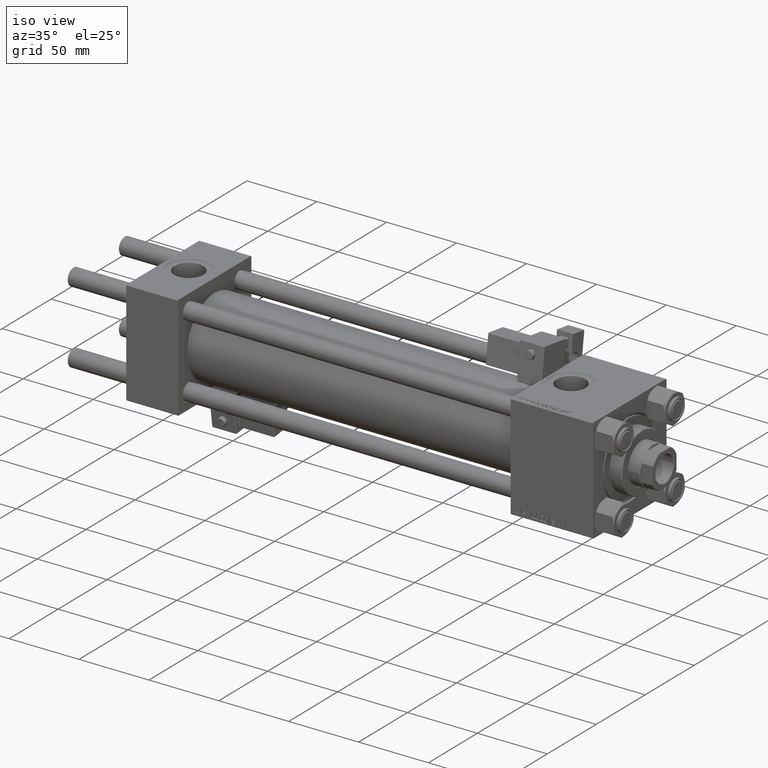
[diagram: clean part render]
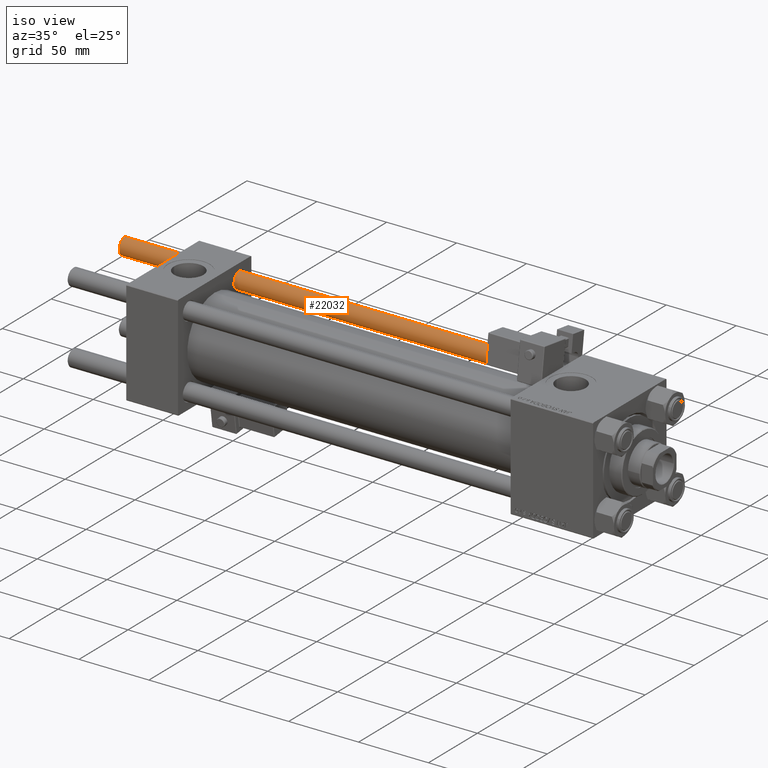
[diagram: same view with one face highlighted and labeled with its STEP entity id]
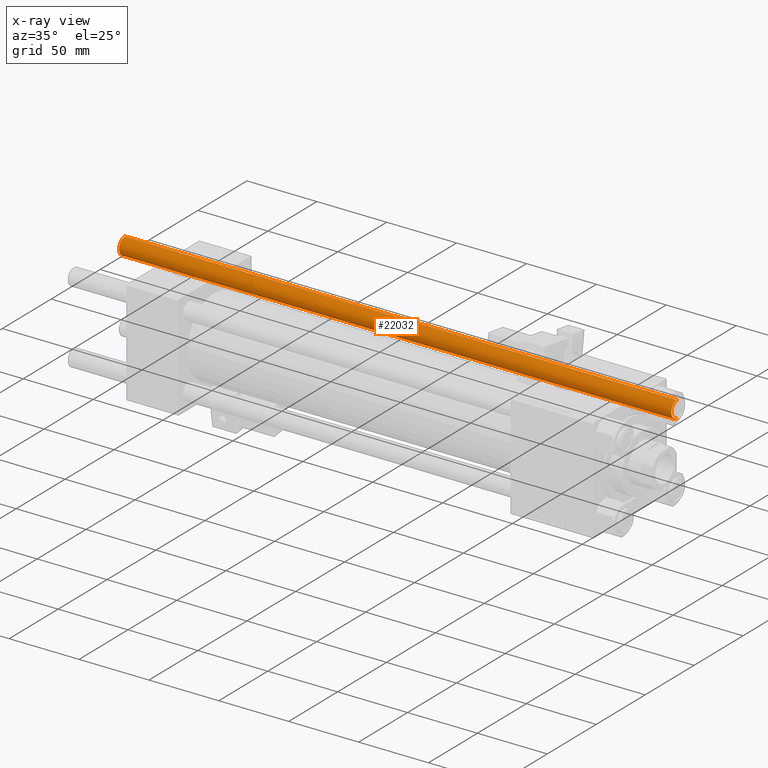
[diagram: x-ray of the same camera — body ghosted, the highlighted face saturated]
A machine part, iso view. The second image highlights one B-rep face of the part: STEP entity #22032.
The next image is the same camera in x-ray: the body ghosted, the highlighted face saturated — about 0% of this face is hidden behind the body in this view.
In plain terms, the highlighted cylindrical surface (edge-blend (fillet) strip) has radius 6 mm, axis along (-1, -0, -0).
Its self-contained STEP definition (entity closure, byte-faithful):
#638 = CARTESIAN_POINT ( 'NONE',  ( 0.000000000000000000, 0.000000000000000000, 395.5000000000000568 ) ) ;
#973 = DIRECTION ( 'NONE',  ( -0.000000000000000000, -0.000000000000000000, -1.000000000000000000 ) ) ;
#2766 = EDGE_CURVE ( 'NONE', #43515, #14283, #17342, .T. ) ;
#2948 = ORIENTED_EDGE ( 'NONE', *, *, #13555, .F. ) ;
#3246 = EDGE_CURVE ( 'NONE', #16394, #43515, #41729, .T. ) ;
#4991 = EDGE_LOOP ( 'NONE', ( #2948, #10081, #27153, #42263 ) ) ;
#6867 = AXIS2_PLACEMENT_3D ( 'NONE', #638, #34194, #16755 ) ;
#8742 = CARTESIAN_POINT ( 'NONE',  ( 6.000000000000000888, 7.347880794884120722E-16, 395.5000000000000568 ) ) ;
#10081 = ORIENTED_EDGE ( 'NONE', *, *, #3246, .T. ) ;
#11971 = VERTEX_POINT ( 'NONE', #44887 ) ;
#12206 = AXIS2_PLACEMENT_3D ( 'NONE', #27808, #48289, #31090 ) ;
#13555 = EDGE_CURVE ( 'NONE', #16394, #11971, #42905, .T. ) ;
#14283 = VERTEX_POINT ( 'NONE', #21629 ) ;
#15357 = CYLINDRICAL_SURFACE ( 'NONE', #31846, 6.000000000000000888 ) ;
#16394 = VERTEX_POINT ( 'NONE', #8742 ) ;
#16755 = DIRECTION ( 'NONE',  ( 1.000000000000000000, 0.000000000000000000, 0.000000000000000000 ) ) ;
#17342 = LINE ( 'NONE', #30148, #29485 ) ;
#18353 = CARTESIAN_POINT ( 'NONE',  ( 6.000000000000000888, 7.347880794884120722E-16, 396.0000000000000000 ) ) ;
#19181 = CARTESIAN_POINT ( 'NONE',  ( 0.000000000000000000, 0.000000000000000000, 396.0000000000000000 ) ) ;
#21629 = CARTESIAN_POINT ( 'NONE',  ( -6.000000000000000888, 0.000000000000000000, 0.5000000000001114664 ) ) ;
#22032 = ADVANCED_FACE ( 'NONE', ( #39653 ), #15357, .T. ) ;
#23544 = DIRECTION ( 'NONE',  ( -0.000000000000000000, -0.000000000000000000, -1.000000000000000000 ) ) ;
#24394 = CIRCLE ( 'NONE', #12206, 6.000000000000000888 ) ;
#26813 = DIRECTION ( 'NONE',  ( -1.000000000000000000, 0.000000000000000000, 0.000000000000000000 ) ) ;
#27153 = ORIENTED_EDGE ( 'NONE', *, *, #2766, .T. ) ;
#27808 = CARTESIAN_POINT ( 'NONE',  ( 0.000000000000000000, 0.000000000000000000, 0.5000000000001114664 ) ) ;
#29485 = VECTOR ( 'NONE', #973, 1000.000000000000000 ) ;
#30148 = CARTESIAN_POINT ( 'NONE',  ( -6.000000000000000888, 0.000000000000000000, 396.0000000000000000 ) ) ;
#30800 = VECTOR ( 'NONE', #34992, 1000.000000000000000 ) ;
#31090 = DIRECTION ( 'NONE',  ( 1.000000000000000000, 0.000000000000000000, 0.000000000000000000 ) ) ;
#31846 = AXIS2_PLACEMENT_3D ( 'NONE', #19181, #23544, #26813 ) ;
#34194 = DIRECTION ( 'NONE',  ( 0.000000000000000000, 0.000000000000000000, -1.000000000000000000 ) ) ;
#34992 = DIRECTION ( 'NONE',  ( -0.000000000000000000, -0.000000000000000000, -1.000000000000000000 ) ) ;
#35171 = EDGE_CURVE ( 'NONE', #14283, #11971, #24394, .T. ) ;
#39653 = FACE_OUTER_BOUND ( 'NONE', #4991, .T. ) ;
#41729 = CIRCLE ( 'NONE', #6867, 6.000000000000000888 ) ;
#42263 = ORIENTED_EDGE ( 'NONE', *, *, #35171, .T. ) ;
#42905 = LINE ( 'NONE', #18353, #30800 ) ;
#43515 = VERTEX_POINT ( 'NONE', #53082 ) ;
#44887 = CARTESIAN_POINT ( 'NONE',  ( 6.000000000000000888, 7.347880794884120722E-16, 0.5000000000001114664 ) ) ;
#48289 = DIRECTION ( 'NONE',  ( -0.000000000000000000, -0.000000000000000000, 1.000000000000000000 ) ) ;
#53082 = CARTESIAN_POINT ( 'NONE',  ( -6.000000000000000888, 0.000000000000000000, 395.5000000000000568 ) ) ;